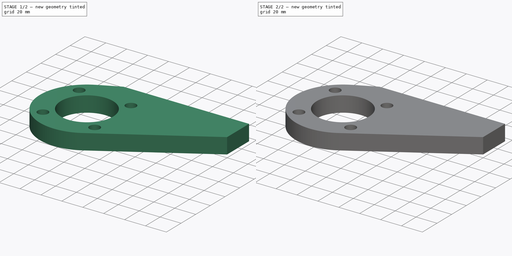
[diagram: build sequence overview — one tinted view per stage of 2, left to right]
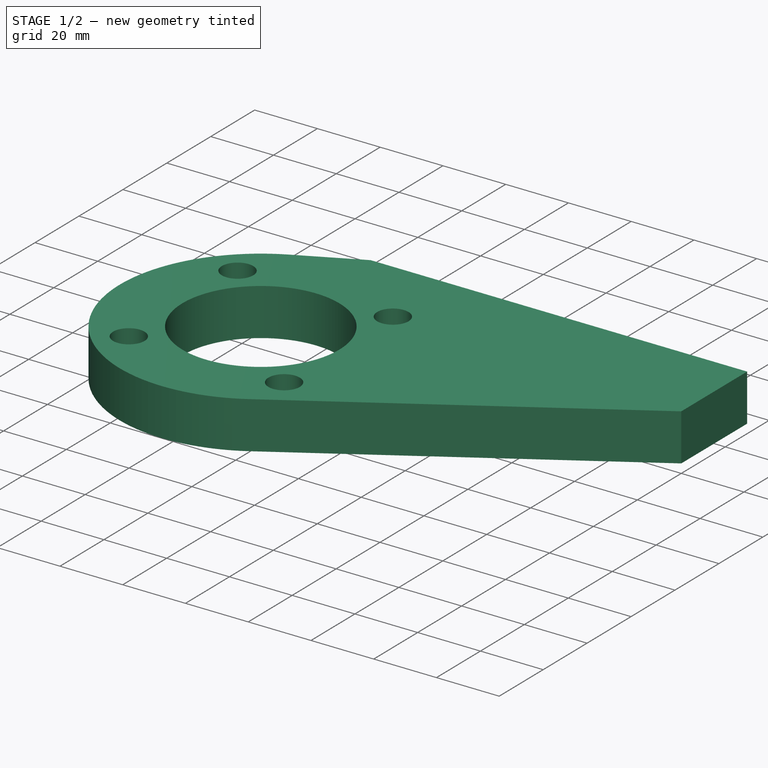
[diagram: stage 1 of 2 — iso view after this stage's code; geometry added in this stage tinted green]
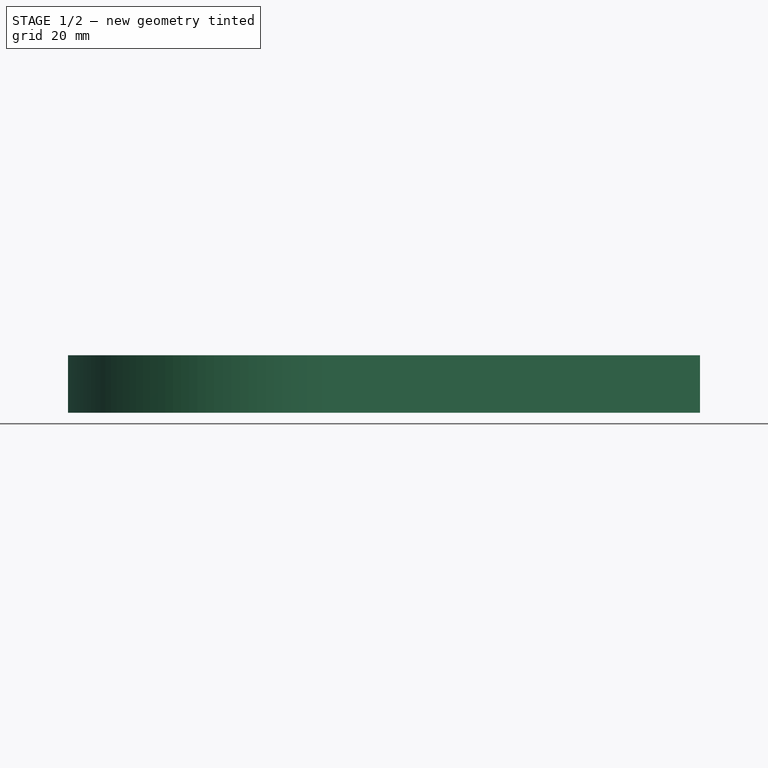
[diagram: stage 1 of 2 — front view after this stage's code; geometry added in this stage tinted green]
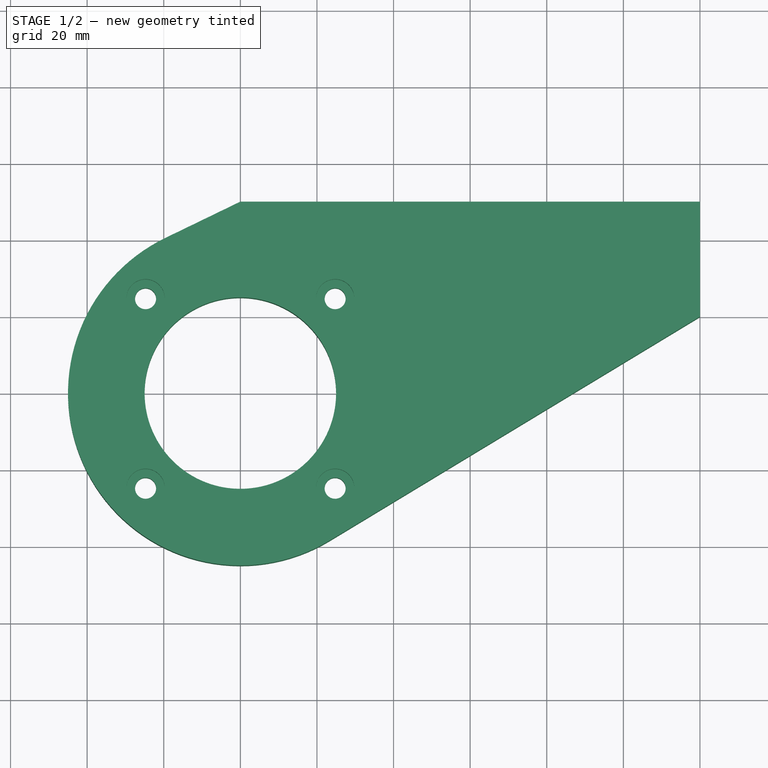
[diagram: stage 1 of 2 — top view after this stage's code; geometry added in this stage tinted green]
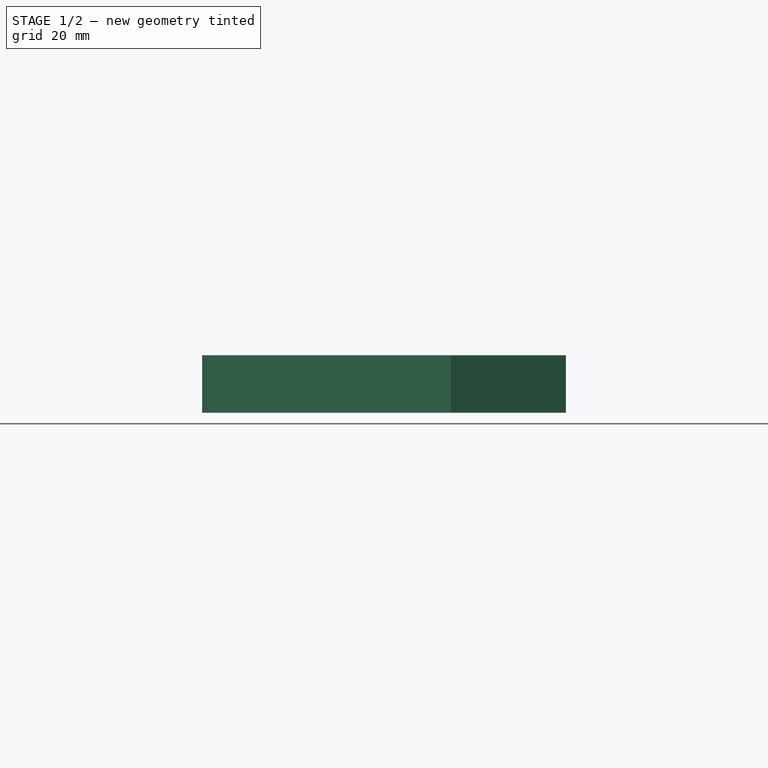
[diagram: stage 1 of 2 — right view after this stage's code; geometry added in this stage tinted green]
FCSTD DOCUMENT  (FreeCAD 0.19R23742 (Git))
Label: motor_bracket
License: All rights reserved
LicenseURL: http://en.wikipedia.org/wiki/All_rights_reserved
objects: Sketcher::SketchObject×3, PartDesign::Pad×1, PartDesign::Hole×1, PartDesign::Pocket×1, PartDesign::Body×1
note: 10 computed .brp shape members not serialized (recipe doc carries the construction recipe); baked Part::Feature solids carry a one-line shape summary decoded from their .brp

FEATURE [Sketcher::SketchObject] Sketch
  FullyConstrained = true
  MapMode = 5
  Support = -> [XY_Plane]
  sketch-geometry (6):
    g0: ArcOfCircle CenterX=0 CenterY=0 CenterZ=0 NormalX=0 NormalY=0 NormalZ=1 AngleXU=0 Radius=45 StartAngle=2.02182 EndAngle=5.25644
    g1: LineSegment StartX=120 StartY=20 StartZ=0 EndX=23.2922 EndY=-38.5029 EndZ=0
    g2: LineSegment StartX=0 StartY=50 StartZ=0 EndX=120 EndY=50 EndZ=0
    g3: LineSegment StartX=120 StartY=50 StartZ=0 EndX=120 EndY=20 EndZ=0
    g4: Circle CenterX=0 CenterY=0 CenterZ=0 NormalX=0 NormalY=0 NormalZ=1 AngleXU=0 Radius=25
    g5: LineSegment StartX=-19.615 StartY=40.5 StartZ=0 EndX=0 EndY=50 EndZ=0
  constraints (15):
    c: Coincident(g0,g-1)
    c: Radius(g0) = 45
    c: PointOnObject(g2,g-2)
    c: DistanceY(g0,g2) = 50
    c: Tangent(g1,g0) = 1.5708
    c: Horizontal(g2)
    c: Coincident(g3,g2)
    c: Coincident(g3,g1)
    c: Vertical(g3)
    c: Distance(g3) = 30
    c: Distance(g2) = 120
    c: Coincident(g4,g0)
    c: Radius(g4) = 25
    c: Coincident(g5,g2)
    c: Tangent(g5,g0) = 1.5708
FEATURE [PartDesign::Pad] Pad
  Direction = (1,1,1)
  Length = 15
  Length2 = 100
  Profile = -> Sketch
  Type = 0
FEATURE [Sketcher::SketchObject] Sketch001
  FullyConstrained = true
  MapMode = 5
  Placement = pos=(0,0,15) rot=(0,0,1;0rad)
  Support = -> [Pad]
  sketch-geometry (11):
    g0: LineSegment StartX=-24.7487 StartY=24.7487 StartZ=0 EndX=24.7487 EndY=24.7487 EndZ=0
    g1: LineSegment StartX=24.7487 StartY=24.7487 StartZ=0 EndX=24.7487 EndY=-24.7487 EndZ=0
    g2: LineSegment StartX=24.7487 StartY=-24.7487 StartZ=0 EndX=-24.7487 EndY=-24.7487 EndZ=0
    g3: LineSegment StartX=-24.7487 StartY=-24.7487 StartZ=0 EndX=-24.7487 EndY=24.7487 EndZ=0
    g4: GeomPoint X=-24.7487 Y=0 Z=0
    g5: GeomPoint X=0 Y=24.7487 Z=0
    g6: Circle CenterX=0 CenterY=0 CenterZ=0 NormalX=0 NormalY=0 NormalZ=1 AngleXU=0 Radius=35
    g7: Circle CenterX=24.7487 CenterY=24.7487 CenterZ=0 NormalX=0 NormalY=0 NormalZ=1 AngleXU=0 Radius=5.5
    g8: Circle CenterX=24.7487 CenterY=-24.7487 CenterZ=0 NormalX=0 NormalY=0 NormalZ=1 AngleXU=0 Radius=5.5
    g9: Circle CenterX=-24.7487 CenterY=-24.7487 CenterZ=0 NormalX=0 NormalY=0 NormalZ=1 AngleXU=0 Radius=5.5
    g10: Circle CenterX=-24.7487 CenterY=24.7487 CenterZ=0 NormalX=0 NormalY=0 NormalZ=1 AngleXU=0 Radius=5.5
  constraints (24):
    c: Coincident(g0,g1)
    c: Coincident(g1,g2)
    c: Coincident(g2,g3)
    c: Coincident(g3,g0)
    c: Horizontal(g0)
    c: Horizontal(g2)
    c: Vertical(g1)
    c: Vertical(g3)
    c: Symmetric(g0,g0,g5)
    c: Symmetric(g3,g3,g4)
    c: PointOnObject(g4,g-1)
    c: PointOnObject(g5,g-2)
    c: Equal(g0,g1)
    c: Coincident(g6,g-1)
    c: PointOnObject(g1,g6)
    c: Radius(g6) = 35
    c: Coincident(g7,g0)
    c: Coincident(g8,g1)
    c: Coincident(g9,g2)
    c: Coincident(g10,g0)
    c: Equal(g10,g7)
    c: Equal(g7,g8)
    c: Equal(g8,g9)
    c: Radius(g7) = 5.5
FEATURE [PartDesign::Hole] Hole
  BaseFeature = -> Pad
  Depth = 25
  DepthType = 0
  Diameter = 5.5
  DrillPoint = 1
  DrillPointAngle = 118
  HoleCutCountersinkAngle = 90
  HoleCutDepth = 5.4
  HoleCutDiameter = 10
  HoleCutType = 12
  ModelActualThread = false
  Profile = -> Sketch001
  Tapered = false
  TaperedAngle = 90
  ThreadAngle = 60
  ThreadClass = 0
  ThreadCutOffInner = 0.0866025
  ThreadCutOffOuter = 0.173205
  ThreadDirection = 0
  ThreadFit = 0
  ThreadPitch = 0.8
  ThreadSize = 13
  ThreadType = 1
  Threaded = false
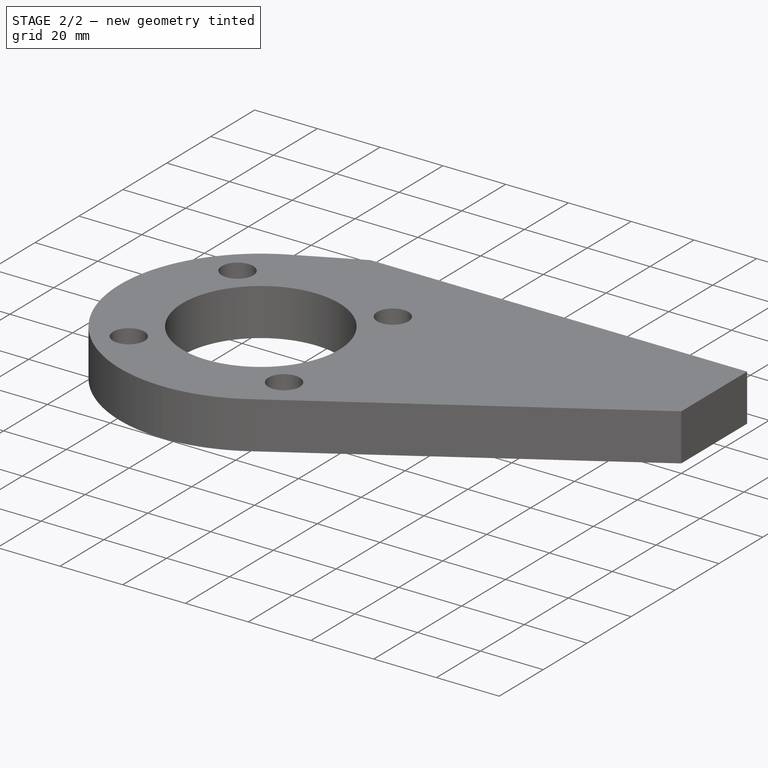
[diagram: stage 2 of 2 — iso view after this stage's code; geometry added in this stage tinted green]
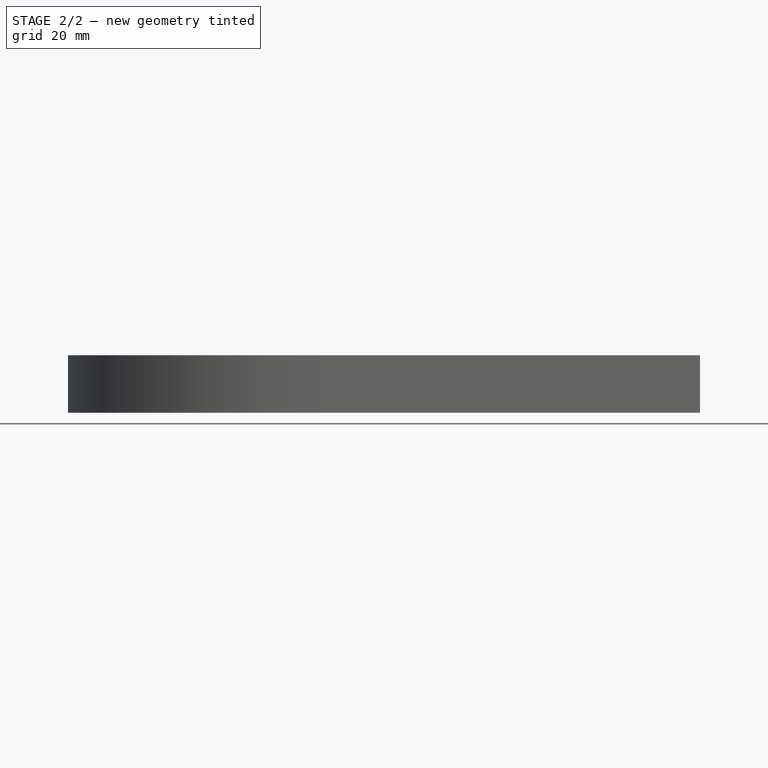
[diagram: stage 2 of 2 — front view after this stage's code; geometry added in this stage tinted green]
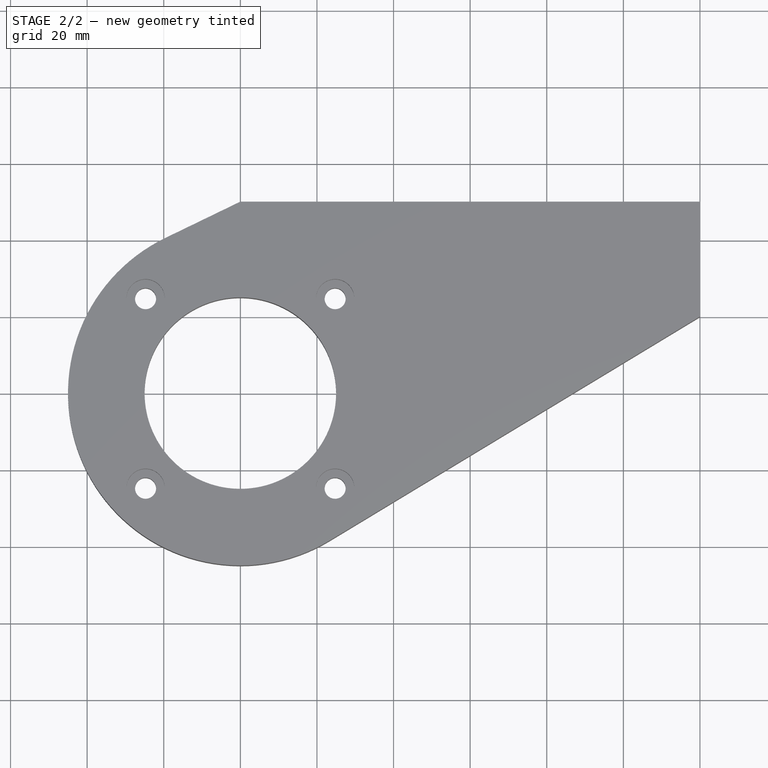
[diagram: stage 2 of 2 — top view after this stage's code; geometry added in this stage tinted green]
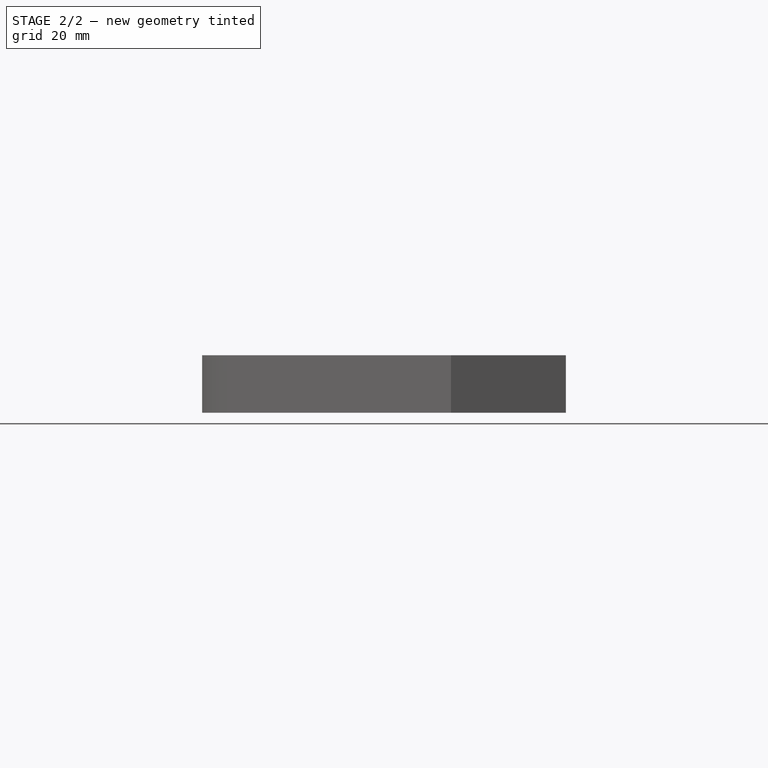
[diagram: stage 2 of 2 — right view after this stage's code; geometry added in this stage tinted green]
FEATURE [Sketcher::SketchObject] Sketch002
  ExternalGeometry = -> [Hole]
  FullyConstrained = true
  MapMode = 5
  Placement = pos=(0,50,0) rot=(0,0.707107,0.707107;3.14159rad)
  Support = -> [Hole]
  sketch-geometry (5):
    g0: GeomPoint X=-120 Y=7.5 Z=0
    g1: GeomPoint X=0 Y=7.5 Z=0
    g2: Circle CenterX=-100 CenterY=7.5 CenterZ=0 NormalX=0 NormalY=0 NormalZ=1 AngleXU=0 Radius=3
    g3: Circle CenterX=-20 CenterY=7.5 CenterZ=0 NormalX=0 NormalY=0 NormalZ=1 AngleXU=0 Radius=3
    g4: LineSegment StartX=-120 StartY=7.5 StartZ=0 EndX=0 EndY=7.5 EndZ=0
  constraints (10):
    c: Symmetric(g-4,g-4,g1)
    c: Symmetric(g-3,g-3,g0)
    c: Coincident(g4,g0)
    c: Coincident(g4,g1)
    c: PointOnObject(g3,g4)
    c: PointOnObject(g2,g4)
    c: DistanceX(g2,g3) = 80
    c: DistanceX(g4,g2) = 20
    c: Radius(g3) = 3
    c: Equal(g3,g2)
FEATURE [PartDesign::Pocket] Pocket
  BaseFeature = -> Hole
  Length = 20
  Length2 = 100
  Profile = -> Sketch002
  Type = 0
FEATURE [PartDesign::Body] Body
  Group = -> [Sketch,Pad,Sketch001,Hole,Sketch002,Pocket]
  Origin = -> Origin
  Tip = -> Pocket
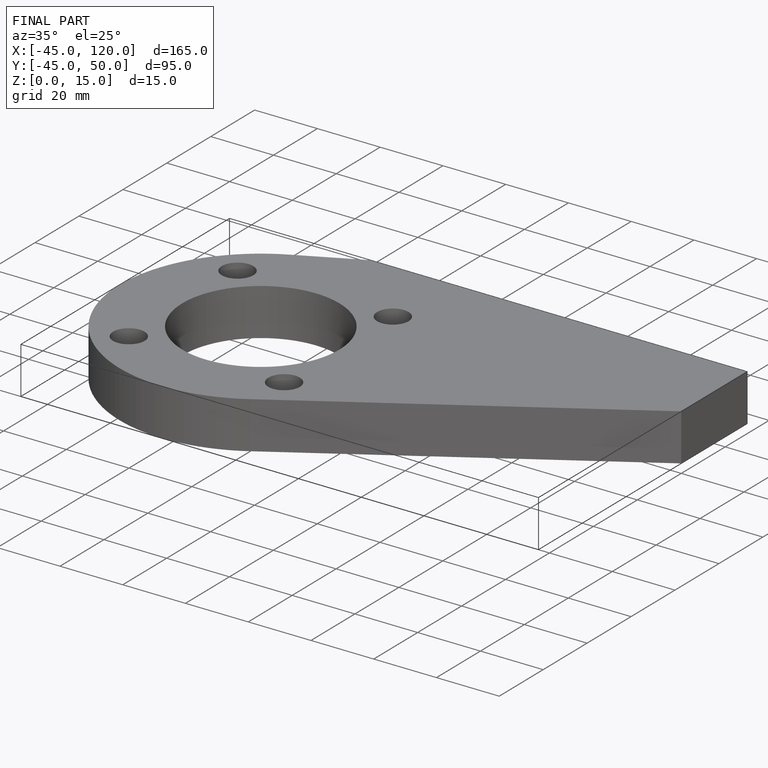
[diagram: finished part — iso view with bounding-box wireframe]
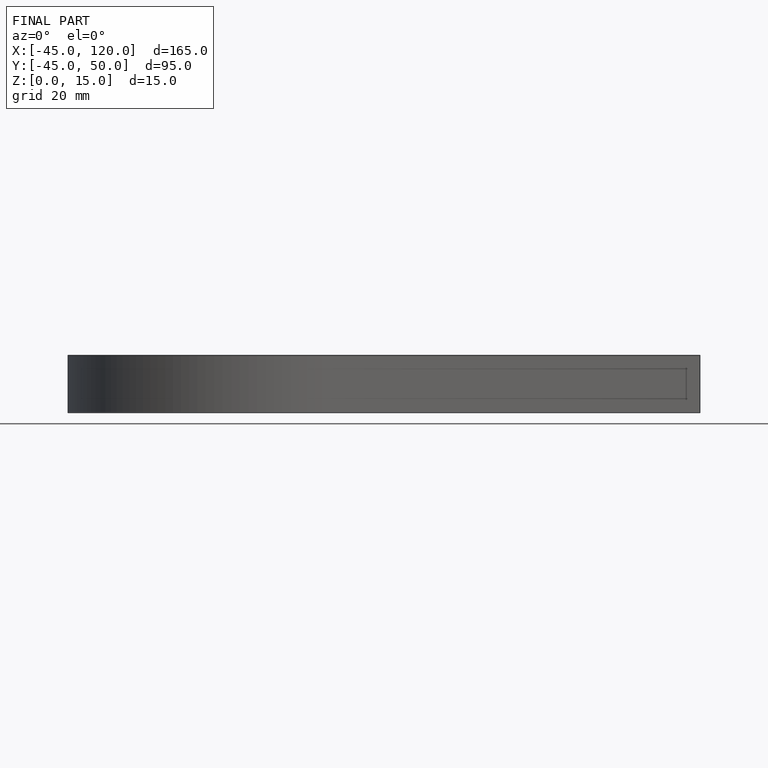
[diagram: finished part — front view with bounding-box wireframe]
